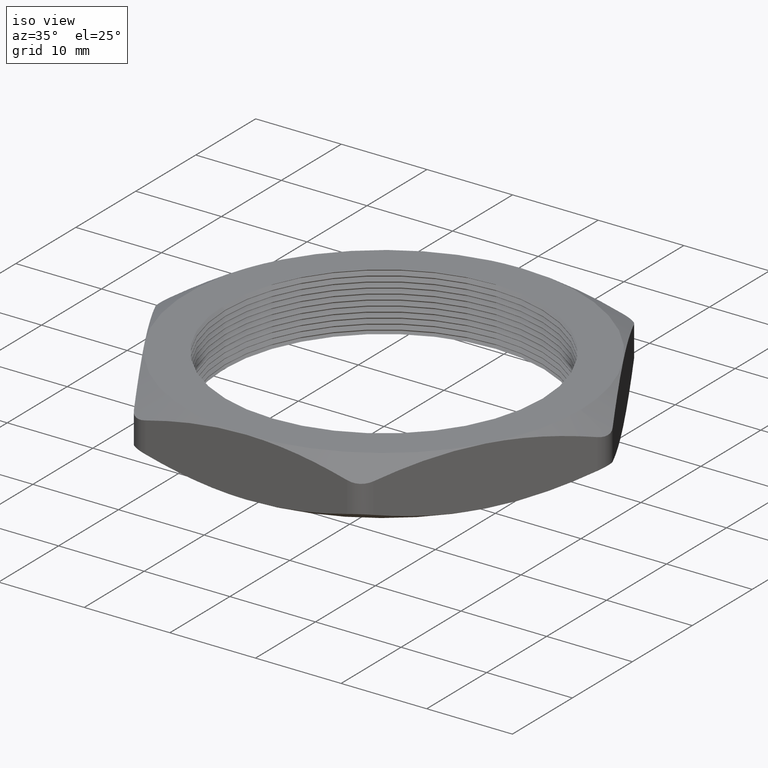
[diagram: clean part render]
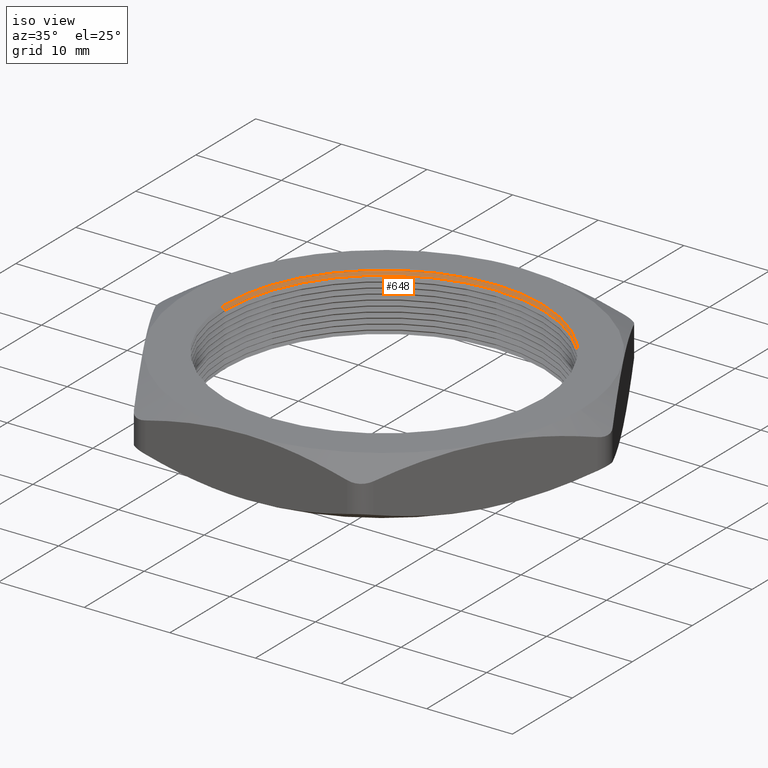
[diagram: same view with one face highlighted and labeled with its STEP entity id]
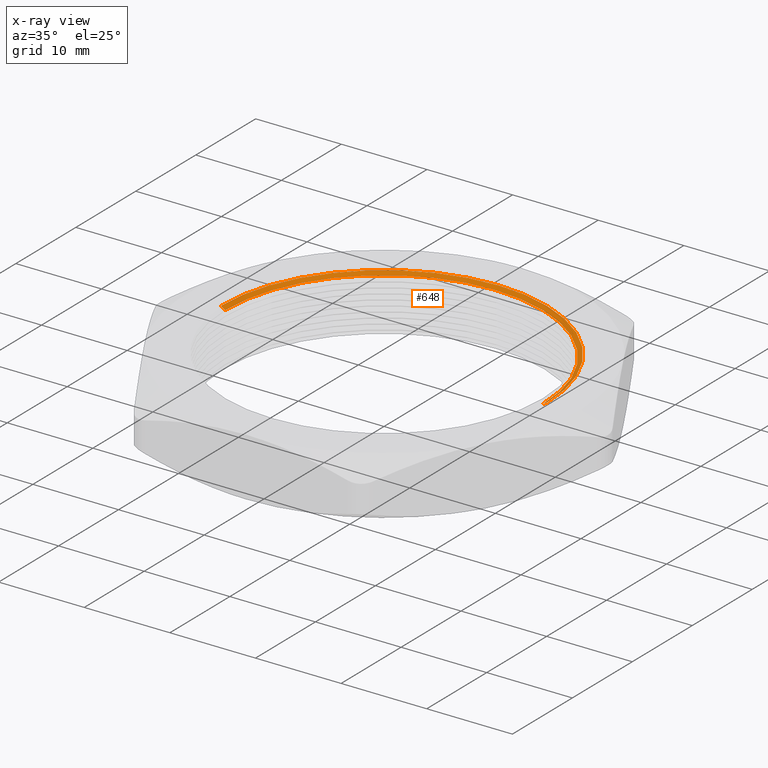
[diagram: x-ray of the same camera — body ghosted, the highlighted face saturated]
A machine part, iso view. The second image highlights one B-rep face of the part: STEP entity #648.
The next image is the same camera in x-ray: the body ghosted, the highlighted face saturated — about 0% of this face is hidden behind the body in this view.
In plain terms, the highlighted conical surface has half-angle 60 deg.
Its self-contained STEP definition (entity closure, byte-faithful):
#185 = VERTEX_POINT ( 'NONE', #1226 ) ;
#188 = VERTEX_POINT ( 'NONE', #1220 ) ;
#189 = EDGE_CURVE ( 'NONE', #192, #188, #1219, .T. ) ;
#192 = VERTEX_POINT ( 'NONE', #1215 ) ;
#193 = VERTEX_POINT ( 'NONE', #1214 ) ;
#504 = EDGE_CURVE ( 'NONE', #193, #185, #1765, .T. ) ;
#605 = EDGE_CURVE ( 'NONE', #185, #188, #1985, .T. ) ;
#606 = EDGE_LOOP ( 'NONE', ( #607, #608, #659, #660 ) ) ;
#607 = ORIENTED_EDGE ( 'NONE', *, *, #189, .F. ) ;
#608 = ORIENTED_EDGE ( 'NONE', *, *, #2683, .F. ) ;
#648 = ADVANCED_FACE ( 'NONE', ( #2053 ), #2048, .F. ) ;
#659 = ORIENTED_EDGE ( 'NONE', *, *, #504, .T. ) ;
#660 = ORIENTED_EDGE ( 'NONE', *, *, #605, .T. ) ;
#1214 = CARTESIAN_POINT ( 'NONE',  ( 0.7299999999999999800, 8.939921633775678300E-017, 0.2469059892324150800 ) ) ;
#1215 = CARTESIAN_POINT ( 'NONE',  ( -0.7299999999999999800, 0.0000000000000000000, 0.2469059892324150800 ) ) ;
#1216 = DIRECTION ( 'NONE',  ( -0.8660254037844366000, 1.060575238724904700E-016, 0.5000000000000033300 ) ) ;
#1217 = VECTOR ( 'NONE', #1216, 39.37007874015748100 ) ;
#1218 = CARTESIAN_POINT ( 'NONE',  ( -0.7299999999999999800, 8.939921633775678300E-017, 0.2469059892324150800 ) ) ;
#1219 = LINE ( 'NONE', #1218, #1217 ) ;
#1220 = CARTESIAN_POINT ( 'NONE',  ( -0.7500000000000001100, 0.0000000000000000000, 0.2584529946162077400 ) ) ;
#1226 = CARTESIAN_POINT ( 'NONE',  ( 0.7500000000000001100, 9.184850993605150900E-017, 0.2584529946162077400 ) ) ;
#1765 = LINE ( 'NONE', #1821, #1820 ) ;
#1819 = DIRECTION ( 'NONE',  ( 0.8660254037844366000, 0.0000000000000000000, 0.5000000000000033300 ) ) ;
#1820 = VECTOR ( 'NONE', #1819, 39.37007874015748100 ) ;
#1821 = CARTESIAN_POINT ( 'NONE',  ( 0.7299999999999999800, 0.0000000000000000000, 0.2469059892324150800 ) ) ;
#1982 = DIRECTION ( 'NONE',  ( 1.000000000000000000, 0.0000000000000000000, 0.0000000000000000000 ) ) ;
#1983 = DIRECTION ( 'NONE',  ( 0.0000000000000000000, 0.0000000000000000000, 1.000000000000000000 ) ) ;
#1984 = AXIS2_PLACEMENT_3D ( 'NONE', #1989, #1983, #1982 ) ;
#1985 = CIRCLE ( 'NONE', #1984, 0.7500000000000001100 ) ;
#1989 = CARTESIAN_POINT ( 'NONE',  ( 0.0000000000000000000, 0.0000000000000000000, 0.2584529946162077400 ) ) ;
#2043 = DIRECTION ( 'NONE',  ( 1.000000000000000000, 0.0000000000000000000, 0.0000000000000000000 ) ) ;
#2044 = DIRECTION ( 'NONE',  ( 0.0000000000000000000, 0.0000000000000000000, 1.000000000000000000 ) ) ;
#2045 = CARTESIAN_POINT ( 'NONE',  ( 0.0000000000000000000, 0.0000000000000000000, 0.2469059892324150800 ) ) ;
#2046 = AXIS2_PLACEMENT_3D ( 'NONE', #2045, #2044, #2043 ) ;
#2048 = CONICAL_SURFACE ( 'NONE', #2046, 0.7299999999999999800, 1.047197551196593900 ) ;
#2053 = FACE_OUTER_BOUND ( 'NONE', #606, .T. ) ;
#2410 = DIRECTION ( 'NONE',  ( 1.000000000000000000, 0.0000000000000000000, 0.0000000000000000000 ) ) ;
#2411 = DIRECTION ( 'NONE',  ( 0.0000000000000000000, 0.0000000000000000000, 1.000000000000000000 ) ) ;
#2412 = CARTESIAN_POINT ( 'NONE',  ( 0.0000000000000000000, 0.0000000000000000000, 0.2469059892324150800 ) ) ;
#2413 = AXIS2_PLACEMENT_3D ( 'NONE', #2412, #2411, #2410 ) ;
#2414 = CIRCLE ( 'NONE', #2413, 0.7299999999999999800 ) ;
#2683 = EDGE_CURVE ( 'NONE', #193, #192, #2414, .T. ) ;